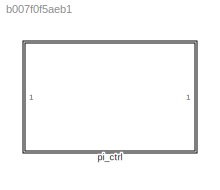
MODEL slx_b007f0f5aeb1
KIND library
CONFIG AbsTol = auto
CONFIG EnableMultiTasking = off
CONFIG FixedStep = auto
CONFIG MaxStep = auto
CONFIG MinStep = auto
CONFIG RelTol = 1e-3
CONFIG SampleTimeConstraint = Unconstrained
CONFIG SolverName = VariableStepAuto
CONFIG StartTime = 0.0
CONFIG StopTime = 10.0
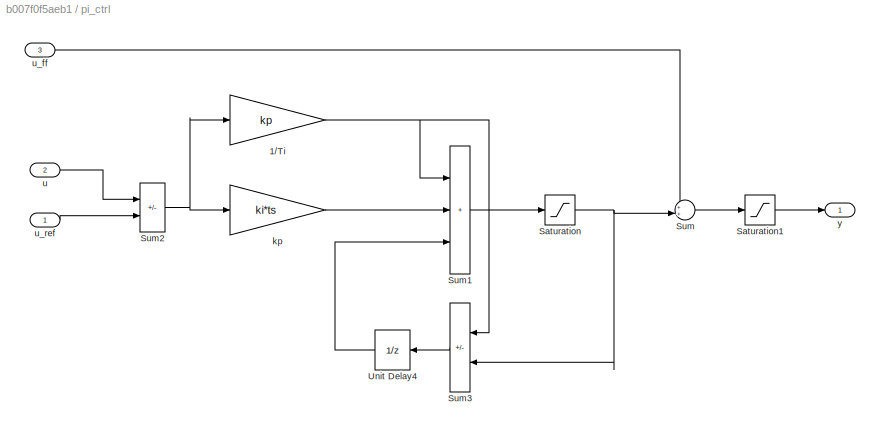
BLOCK [SubSystem] pi_ctrl
BLOCK [Gain] pi_ctrl/1//Ti
  Gain = kp
  OutDataTypeStr = Inherit: Same as input
  ParamDataTypeStr = Inherit: Same as input
  SaturateOnIntegerOverflow = on
BLOCK [Saturate] pi_ctrl/Saturation
  LowerLimit = lim_down
  UpperLimit = lim_up
BLOCK [Saturate] pi_ctrl/Saturation1
  LowerLimit = lim_down
  UpperLimit = lim_up
BLOCK [Sum] pi_ctrl/Sum
  Inputs = ++|
BLOCK [Sum] pi_ctrl/Sum1
  IconShape = rectangular
  Inputs = +++
  SaturateOnIntegerOverflow = on
BLOCK [Sum] pi_ctrl/Sum2
  IconShape = rectangular
  Inputs = -+
  SaturateOnIntegerOverflow = on
BLOCK [Sum] pi_ctrl/Sum3
  IconShape = rectangular
  Inputs = -+
  NameLocation = top
  SaturateOnIntegerOverflow = on
BLOCK [UnitDelay] pi_ctrl/Unit Delay4
  HasFrameUpgradeWarning = on
  SampleTime = -1
BLOCK [Gain] pi_ctrl/kp
  Gain = ki*ts
  OutDataTypeStr = Inherit: Same as input
  ParamDataTypeStr = Inherit: Same as input
  SaturateOnIntegerOverflow = on
BLOCK [Inport] pi_ctrl/u
  Port = 2
BLOCK [Inport] pi_ctrl/u_ff
  NameLocation = top
  Port = 3
BLOCK [Inport] pi_ctrl/u_ref
BLOCK [Outport] pi_ctrl/y
NET pi_ctrl/1//Ti:1 -> pi_ctrl/Sum1:1, pi_ctrl/Sum3:1
LINE pi_ctrl/Saturation1:1 -> pi_ctrl/y:1
NET pi_ctrl/Saturation:1 -> pi_ctrl/Sum3:2, pi_ctrl/Sum:2
LINE pi_ctrl/Sum1:1 -> pi_ctrl/Saturation:1
NET pi_ctrl/Sum2:1 -> pi_ctrl/1//Ti:1, pi_ctrl/kp:1
LINE pi_ctrl/Sum3:1 -> pi_ctrl/Unit Delay4:1
LINE pi_ctrl/Sum:1 -> pi_ctrl/Saturation1:1
LINE pi_ctrl/Unit Delay4:1 -> pi_ctrl/Sum1:3
LINE pi_ctrl/kp:1 -> pi_ctrl/Sum1:2
LINE pi_ctrl/u:1 -> pi_ctrl/Sum2:1
LINE pi_ctrl/u_ff:1 -> pi_ctrl/Sum:1
LINE pi_ctrl/u_ref:1 -> pi_ctrl/Sum2:2
note: NET lines group one-source signal fan-out (src -> all destinations, sorted); 1:1 wires keep LINE
